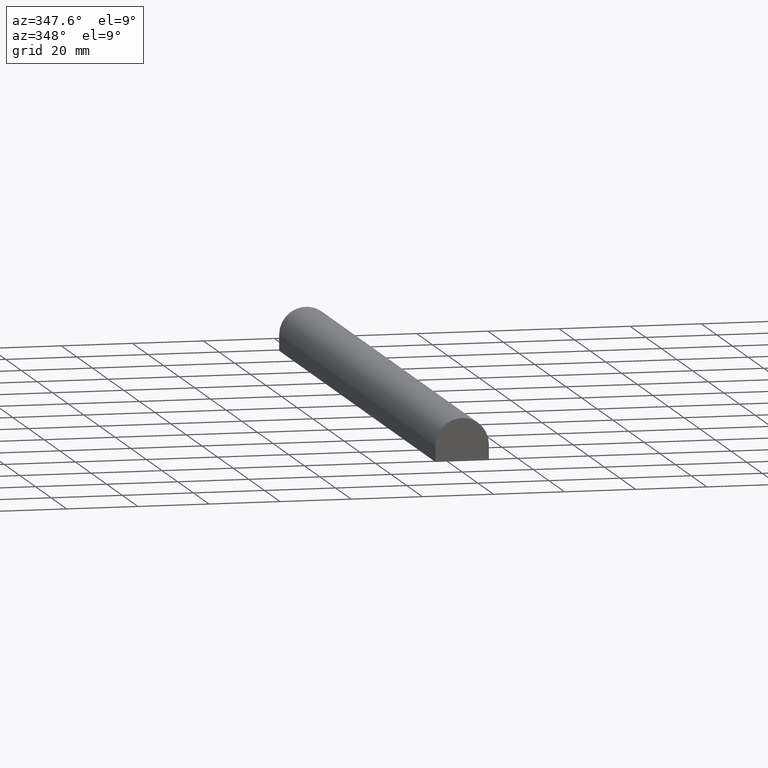
[diagram: clean part render]
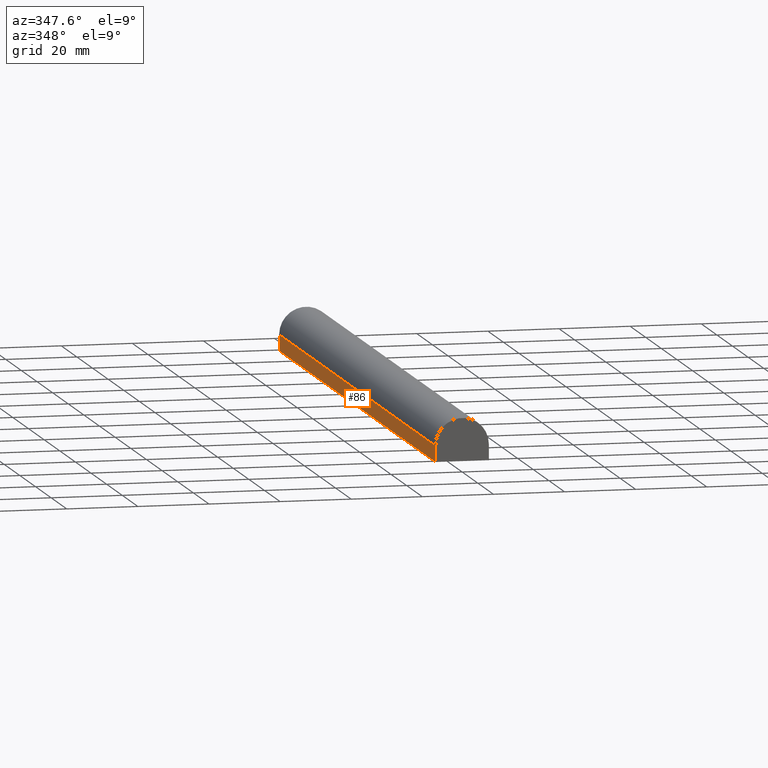
[diagram: same view with one face highlighted and labeled with its STEP entity id]
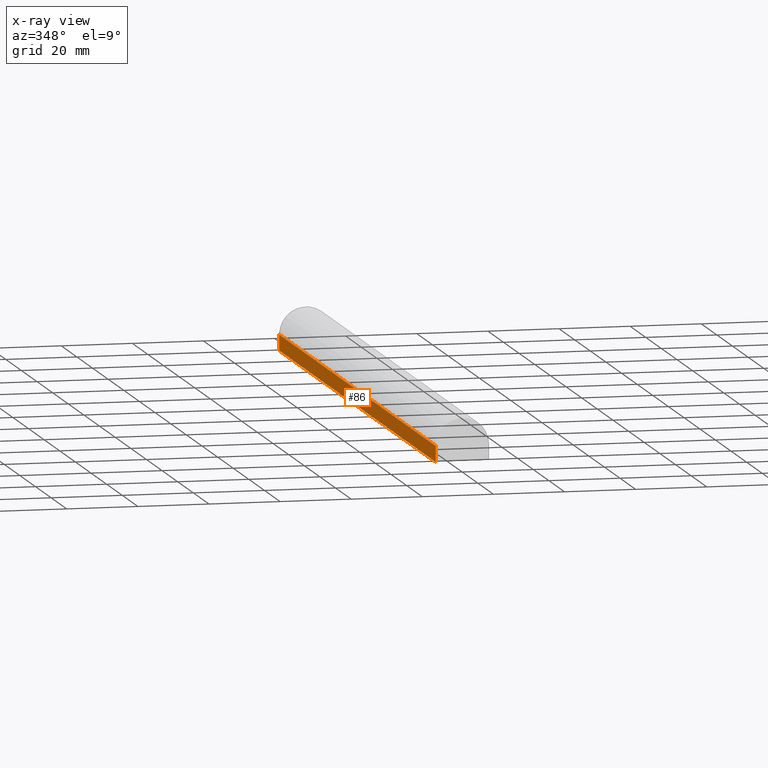
[diagram: x-ray of the same camera — body ghosted, the highlighted face saturated]
A machine part, auxiliary view. The second image highlights one B-rep face of the part: STEP entity #86.
The next image is the same camera in x-ray: the body ghosted, the highlighted face saturated — about 0% of this face is hidden behind the body in this view.
In plain terms, the highlighted planar face has unit normal (-1, 0, 0).
Its self-contained STEP definition (entity closure, byte-faithful):
#3 = ORIENTED_EDGE ( 'NONE', *, *, #214, .F. ) ;
#4 = VECTOR ( 'NONE', #222, 1000.000000000000000 ) ;
#6 = VECTOR ( 'NONE', #116, 1000.000000000000000 ) ;
#18 = FACE_OUTER_BOUND ( 'NONE', #198, .T. ) ;
#33 = EDGE_CURVE ( 'NONE', #89, #69, #125, .T. ) ;
#36 = VERTEX_POINT ( 'NONE', #230 ) ;
#44 = AXIS2_PLACEMENT_3D ( 'NONE', #192, #46, #103 ) ;
#46 = DIRECTION ( 'NONE',  ( -1.000000000000000000, 0.0000000000000000000, 0.0000000000000000000 ) ) ;
#60 = EDGE_CURVE ( 'NONE', #36, #219, #115, .T. ) ;
#61 = LINE ( 'NONE', #117, #4 ) ;
#64 = CARTESIAN_POINT ( 'NONE',  ( -7.500000000000000000, 200.0000000000000000, 0.0000000000000000000 ) ) ;
#67 = VECTOR ( 'NONE', #106, 1000.000000000000000 ) ;
#68 = CARTESIAN_POINT ( 'NONE',  ( -7.500000000000000000, 200.0000000000000000, -1.500000000000000000 ) ) ;
#69 = VERTEX_POINT ( 'NONE', #174 ) ;
#86 = ADVANCED_FACE ( 'NONE', ( #18 ), #210, .T. ) ;
#89 = VERTEX_POINT ( 'NONE', #68 ) ;
#102 = ORIENTED_EDGE ( 'NONE', *, *, #145, .T. ) ;
#103 = DIRECTION ( 'NONE',  ( 0.0000000000000000000, 0.0000000000000000000, 1.000000000000000000 ) ) ;
#106 = DIRECTION ( 'NONE',  ( -0.0000000000000000000, -0.0000000000000000000, -1.000000000000000000 ) ) ;
#115 = LINE ( 'NONE', #208, #202 ) ;
#116 = DIRECTION ( 'NONE',  ( 0.0000000000000000000, -1.000000000000000000, 0.0000000000000000000 ) ) ;
#117 = CARTESIAN_POINT ( 'NONE',  ( -7.500000000000000000, 1000.000000000000000, -6.000000000000000000 ) ) ;
#125 = LINE ( 'NONE', #64, #67 ) ;
#143 = DIRECTION ( 'NONE',  ( -0.0000000000000000000, -0.0000000000000000000, -1.000000000000000000 ) ) ;
#145 = EDGE_CURVE ( 'NONE', #69, #219, #61, .T. ) ;
#151 = ORIENTED_EDGE ( 'NONE', *, *, #33, .T. ) ;
#174 = CARTESIAN_POINT ( 'NONE',  ( -7.500000000000000000, 200.0000000000000000, -6.000000000000000000 ) ) ;
#181 = ORIENTED_EDGE ( 'NONE', *, *, #60, .F. ) ;
#192 = CARTESIAN_POINT ( 'NONE',  ( -7.500000000000000000, 1000.000000000000000, -1.500000000000000000 ) ) ;
#196 = LINE ( 'NONE', #237, #6 ) ;
#198 = EDGE_LOOP ( 'NONE', ( #181, #3, #151, #102 ) ) ;
#202 = VECTOR ( 'NONE', #143, 1000.000000000000000 ) ;
#208 = CARTESIAN_POINT ( 'NONE',  ( -7.500000000000000000, 0.0000000000000000000, 0.0000000000000000000 ) ) ;
#210 = PLANE ( 'NONE',  #44 ) ;
#214 = EDGE_CURVE ( 'NONE', #89, #36, #196, .T. ) ;
#219 = VERTEX_POINT ( 'NONE', #220 ) ;
#220 = CARTESIAN_POINT ( 'NONE',  ( -7.500000000000000000, 0.0000000000000000000, -6.000000000000000000 ) ) ;
#222 = DIRECTION ( 'NONE',  ( 0.0000000000000000000, -1.000000000000000000, 0.0000000000000000000 ) ) ;
#230 = CARTESIAN_POINT ( 'NONE',  ( -7.500000000000000000, 0.0000000000000000000, -1.500000000000000000 ) ) ;
#237 = CARTESIAN_POINT ( 'NONE',  ( -7.500000000000000000, 1000.000000000000000, -1.500000000000000000 ) ) ;